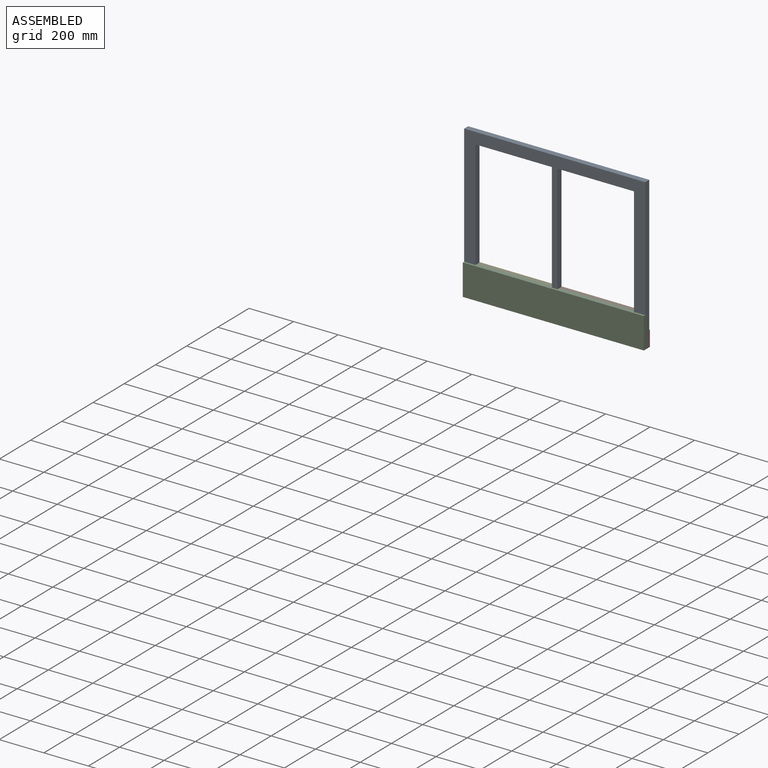
[diagram: assembled view]
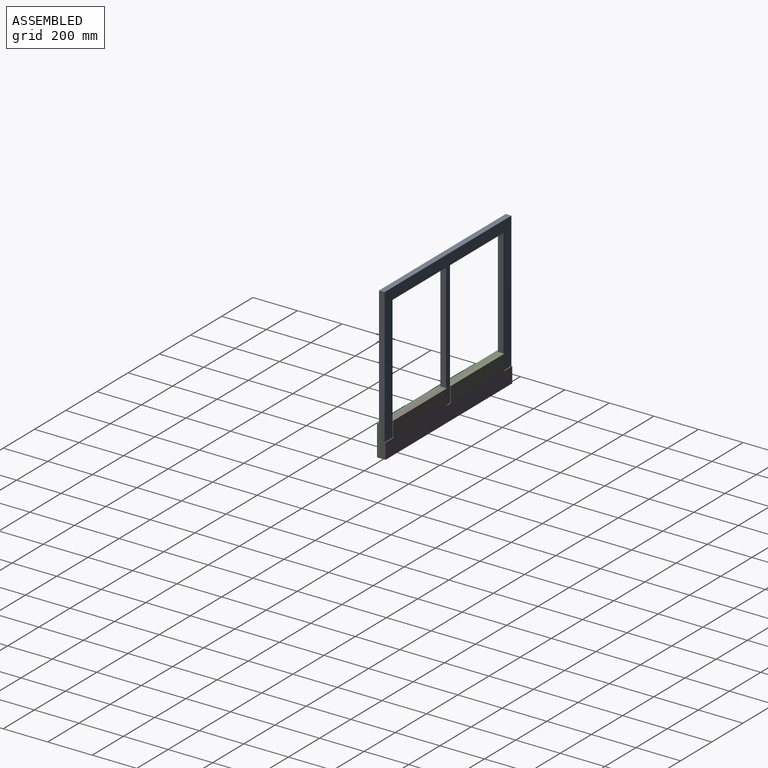
[diagram: assembled view, second angle]
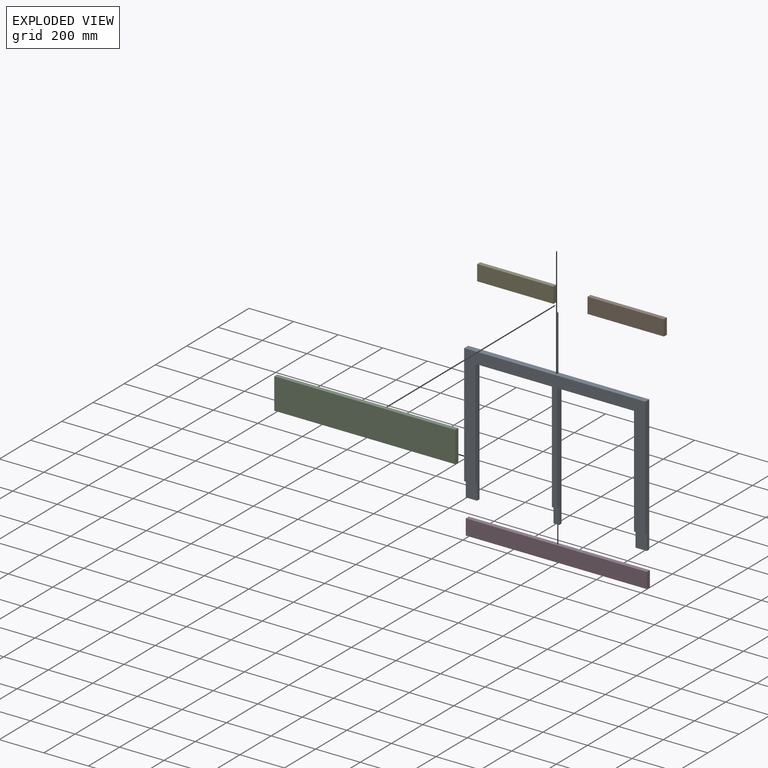
[diagram: exploded view]
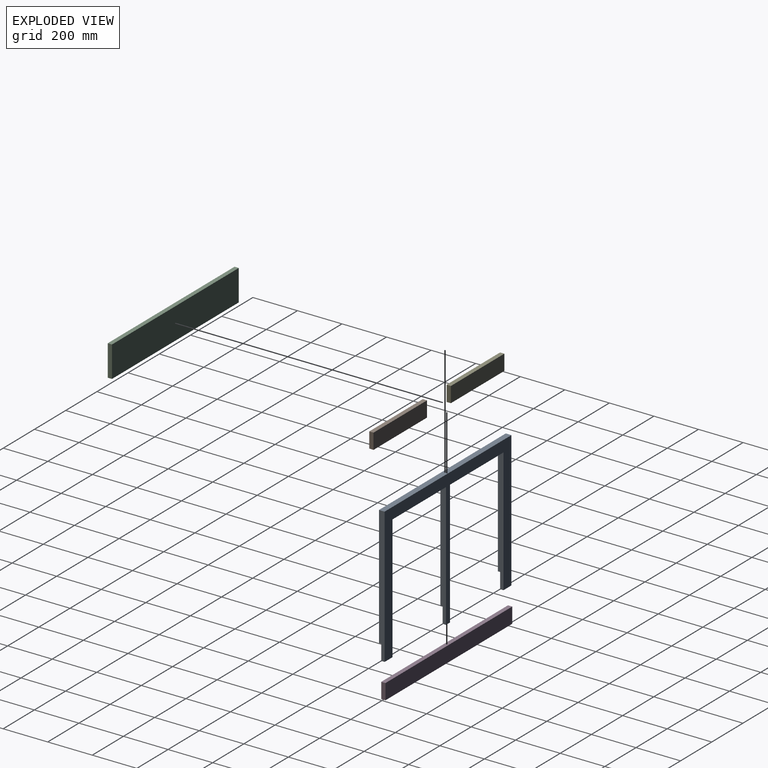
[diagram: exploded view, second angle]
ASSEMBLY  parts=5 mates=12
PART A: 20 faces, bbox 812.8x25.4x609.6 mm
  f0: plane 25.4x15.24mm, normal (0,0,-1), area 387.1mm2, adj f4,f10,f12,f15
  f1: plane 50.8x15.24mm, normal (0,0,-1), area 774.2mm2, adj f4,f6,f8,f18
  f2: plane 50.8x15.24mm, normal (0,0,-1), area 774.2mm2, adj f4,f7,f11,f17
  f3: plane 812.8x539.75mm, normal (0,-1,0), area 103386.9mm2, adj f5,f6,f7,f8,f9,f10,f11,f12
  f4: plane 812.8x609.6mm, normal (0,1,0), area 112257.8mm2, adj f0,f1,f2,f5,f6,f7,f8,f9
  f5: plane 812.8x25.4mm, normal (0,0,1), area 20645.1mm2, adj f3,f4,f6,f7
  f6: plane 609.6x25.4mm, normal (1,0,0), area 14774.2mm2, adj f1,f3,f4,f5,f18,f19
  f7: plane 609.6x25.4mm, normal (-1,0,0), area 14774.2mm2, adj f2,f3,f4,f5,f16,f17
  f8: plane 558.8x25.4mm, normal (-1,0,0), area 13483.8mm2, adj f1,f3,f4,f9,f18,f19
  f9: plane 342.9x25.4mm, normal (0,0,-1), area 8709.7mm2, adj f3,f4,f8,f10
  f10: plane 558.8x25.4mm, normal (1,0,0), area 13483.8mm2, adj f0,f3,f4,f9,f14,f15
  f11: plane 558.8x25.4mm, normal (1,0,0), area 13483.8mm2, adj f2,f3,f4,f13,f16,f17
  f12: plane 558.8x25.4mm, normal (-1,0,0), area 13483.8mm2, adj f0,f3,f4,f13,f14,f15
  f13: plane 342.9x25.4mm, normal (0,0,-1), area 8709.7mm2, adj f3,f4,f11,f12
  f14: plane 25.4x10.16mm, normal (0,0,-1), area 258.1mm2, adj f3,f10,f12,f15
  f15: plane 69.85x25.4mm, normal (0,-1,0), area 1774.2mm2, adj f0,f10,f12,f14
  f16: plane 50.8x10.16mm, normal (0,0,-1), area 516.1mm2, adj f3,f7,f11,f17
  f17: plane 69.85x50.8mm, normal (0,-1,0), area 3548.4mm2, adj f2,f7,f11,f16
  f18: plane 69.85x50.8mm, normal (0,-1,0), area 3548.4mm2, adj f1,f6,f8,f19
  f19: plane 50.8x10.16mm, normal (0,0,-1), area 516.1mm2, adj f3,f6,f8,f18
PART B: 6 faces, bbox 342.9x19.1x69.9 mm
  f0: plane 342.9x19.05mm, normal (0,0,1), area 6532.2mm2, adj f1,f3,f4,f5
  f1: plane 342.9x69.85mm, normal (0,-1,0), area 23951.6mm2, adj f0,f2,f4,f5
  f2: plane 342.9x19.05mm, normal (0,0,-1), area 6532.2mm2, adj f1,f3,f4,f5
  f3: plane 342.9x69.85mm, normal (0,1,0), area 23951.6mm2, adj f0,f2,f4,f5
  f4: plane 69.85x19.05mm, normal (1,0,0), area 1330.6mm2, adj f0,f1,f2,f3
  f5: plane 69.85x19.05mm, normal (-1,0,0), area 1330.6mm2, adj f0,f1,f2,f3
PART C: 6 faces, bbox 812.8x19.1x139.7 mm
  f0: plane 812.8x19.05mm, normal (0,0,-1), area 15483.8mm2, adj f1,f3,f4,f5
  f1: plane 812.8x139.7mm, normal (0,1,0), area 113548.2mm2, adj f0,f2,f4,f5
  f2: plane 812.8x19.05mm, normal (0,0,1), area 15483.8mm2, adj f1,f3,f4,f5
  f3: plane 812.8x139.7mm, normal (0,-1,0), area 113548.2mm2, adj f0,f2,f4,f5
  f4: plane 139.7x19.05mm, normal (1,0,0), area 2661.3mm2, adj f0,f1,f2,f3
  f5: plane 139.7x19.05mm, normal (-1,0,0), area 2661.3mm2, adj f0,f1,f2,f3
PART D: 6 faces, bbox 812.8x19.1x69.9 mm
  f0: plane 812.8x69.85mm, normal (0,-1,0), area 56774.1mm2, adj f1,f3,f4,f5
  f1: plane 812.8x19.05mm, normal (0,0,-1), area 15483.8mm2, adj f0,f2,f4,f5
  f2: plane 812.8x69.85mm, normal (0,1,0), area 56774.1mm2, adj f1,f3,f4,f5
  f3: plane 812.8x19.05mm, normal (0,0,1), area 15483.8mm2, adj f0,f2,f4,f5
  f4: plane 69.85x19.05mm, normal (1,0,0), area 1330.6mm2, adj f0,f1,f2,f3
  f5: plane 69.85x19.05mm, normal (-1,0,0), area 1330.6mm2, adj f0,f1,f2,f3
PART E: same geometry as B
PLACE A t=(12.7,10.16,-244.48)mm
PLACE B t=(196.85,10.16,-314.33)mm
PLACE C t=(12.7,10.16,-314.33)mm
PLACE D t=(12.7,10.16,-314.33)mm
PLACE E rot(axis=(-1,0,0),180deg) t=(-171.45,29.21,-244.48)mm
MATE planar E.f3 <-> A.f17  axis (0,-1,0) through (-171.45,10.16,-279.4)mm
MATE planar A.f6 <-> D.f4  axis (1,0,0) through (419.1,13.07,3.44)mm
MATE planar A.f18 <-> B.f1  axis (0,-1,0) through (419.1,10.16,-279.4)mm
MATE planar E.f0 <-> A.f2  axis (0,0,-1) through (-171.45,19.69,-314.33)mm
MATE planar B.f4 <-> A.f8  axis (1,0,0) through (368.3,29.21,-279.4)mm
MATE planar D.f0 <-> A.f15  axis (0,-1,0) through (12.7,10.16,-349.25)mm
MATE planar A.f11 <-> E.f5  axis (1,0,0) through (-342.9,13.1,-22.06)mm
MATE planar C.f1 <-> A.f17  axis (0,1,0) through (12.7,10.16,-314.33)mm
MATE planar C.f2 <-> A.f14  axis (0,0,1) through (12.7,0.64,-244.48)mm
MATE planar D.f3 <-> A.f0  axis (0,0,1) through (12.7,19.69,-314.33)mm
MATE planar C.f4 <-> A.f6  axis (1,0,0) through (419.1,0.64,-314.33)mm
MATE planar A.f0 <-> B.f2  axis (0,0,-1) through (12.7,17.78,-314.33)mm
